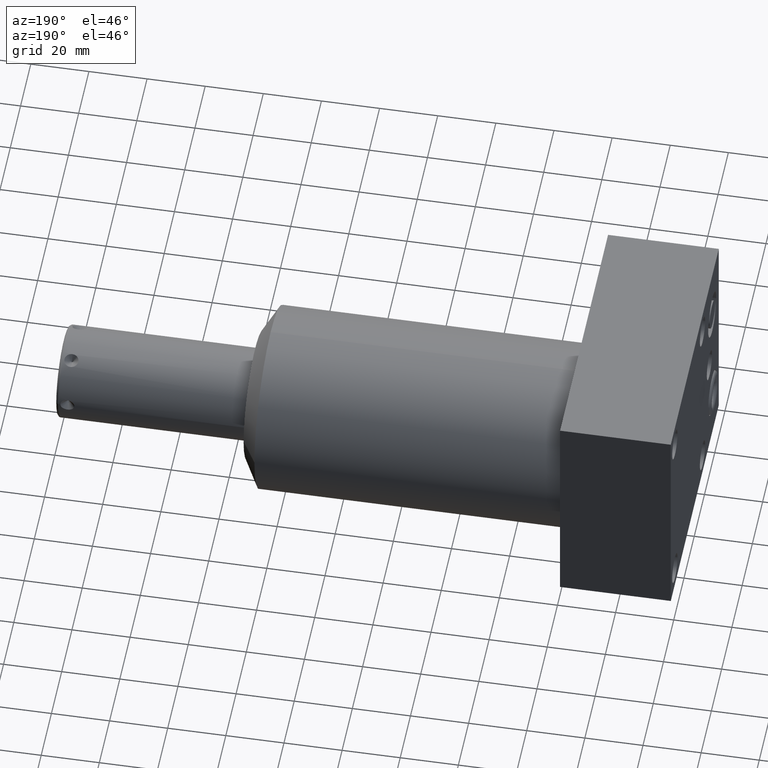
[diagram: clean part render]
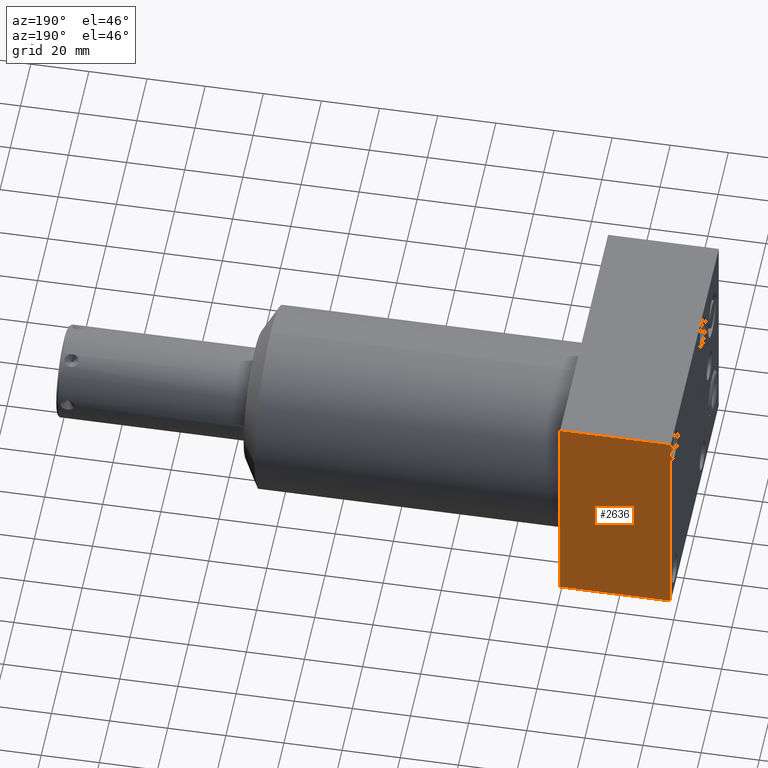
[diagram: same view with one face highlighted and labeled with its STEP entity id]
A machine part, auxiliary view. The second image highlights one B-rep face of the part: STEP entity #2636.
In plain terms, the highlighted planar face has unit normal (0, 1, 0).
Its self-contained STEP definition (entity closure, byte-faithful):
#764=DIRECTION('',(-1.E0,0.E0,0.E0));
#765=VECTOR('',#764,1.5E0);
#766=CARTESIAN_POINT('',(0.E0,1.375E0,1.5E0));
#767=LINE('',#766,#765);
#792=DIRECTION('',(0.E0,0.E0,1.E0));
#793=VECTOR('',#792,3.E0);
#794=CARTESIAN_POINT('',(-1.5E0,1.375E0,-1.5E0));
#795=LINE('',#794,#793);
#925=DIRECTION('',(0.E0,0.E0,-1.E0));
#926=VECTOR('',#925,3.E0);
#927=CARTESIAN_POINT('',(0.E0,1.375E0,1.5E0));
#928=LINE('',#927,#926);
#932=DIRECTION('',(-1.E0,0.E0,0.E0));
#933=VECTOR('',#932,1.5E0);
#934=CARTESIAN_POINT('',(0.E0,1.375E0,-1.5E0));
#935=LINE('',#934,#933);
#1698=CARTESIAN_POINT('',(-1.5E0,1.375E0,1.5E0));
#1700=VERTEX_POINT('',#1698);
#1704=CARTESIAN_POINT('',(-1.5E0,1.375E0,-1.5E0));
#1705=VERTEX_POINT('',#1704);
#1707=CARTESIAN_POINT('',(0.E0,1.375E0,1.5E0));
#1709=VERTEX_POINT('',#1707);
#1712=CARTESIAN_POINT('',(0.E0,1.375E0,-1.5E0));
#1713=VERTEX_POINT('',#1712);
#2625=CARTESIAN_POINT('',(4.375E0,1.375E0,-1.5E0));
#2626=DIRECTION('',(0.E0,1.E0,0.E0));
#2627=DIRECTION('',(0.E0,0.E0,1.E0));
#2628=AXIS2_PLACEMENT_3D('',#2625,#2626,#2627);
#2629=PLANE('',#2628);
#2630=ORIENTED_EDGE('',*,*,#2018,.F.);
#2631=ORIENTED_EDGE('',*,*,#2551,.T.);
#2632=ORIENTED_EDGE('',*,*,#2565,.F.);
#2633=ORIENTED_EDGE('',*,*,#2618,.F.);
#2634=EDGE_LOOP('',(#2630,#2631,#2632,#2633));
#2635=FACE_OUTER_BOUND('',#2634,.F.);
#2018=EDGE_CURVE('',#1709,#1713,#928,.T.);
#2551=EDGE_CURVE('',#1709,#1700,#767,.T.);
#2565=EDGE_CURVE('',#1705,#1700,#795,.T.);
#2618=EDGE_CURVE('',#1713,#1705,#935,.T.);
#2636=ADVANCED_FACE('',(#2635),#2629,.T.);